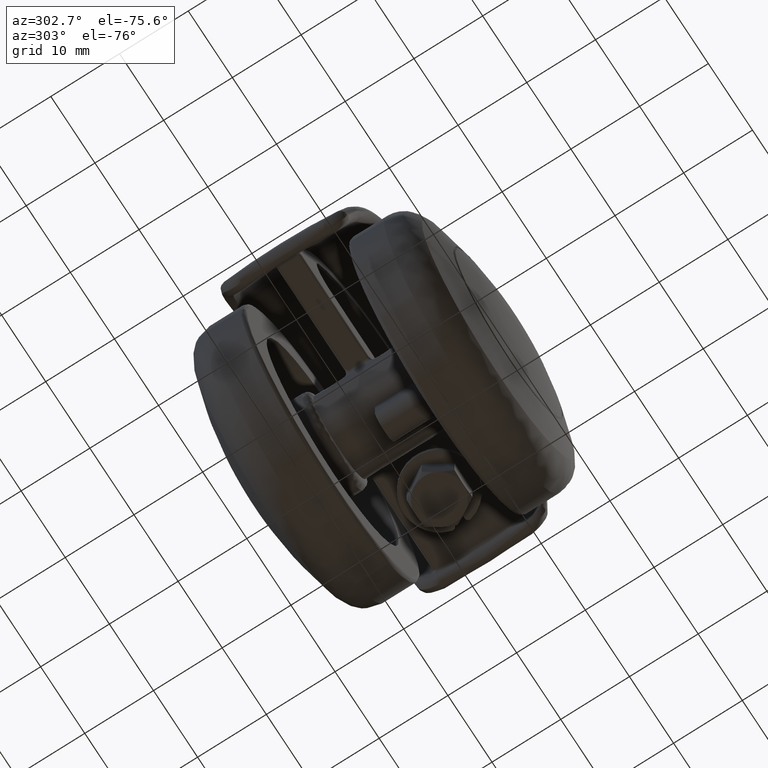
[diagram: clean part render]
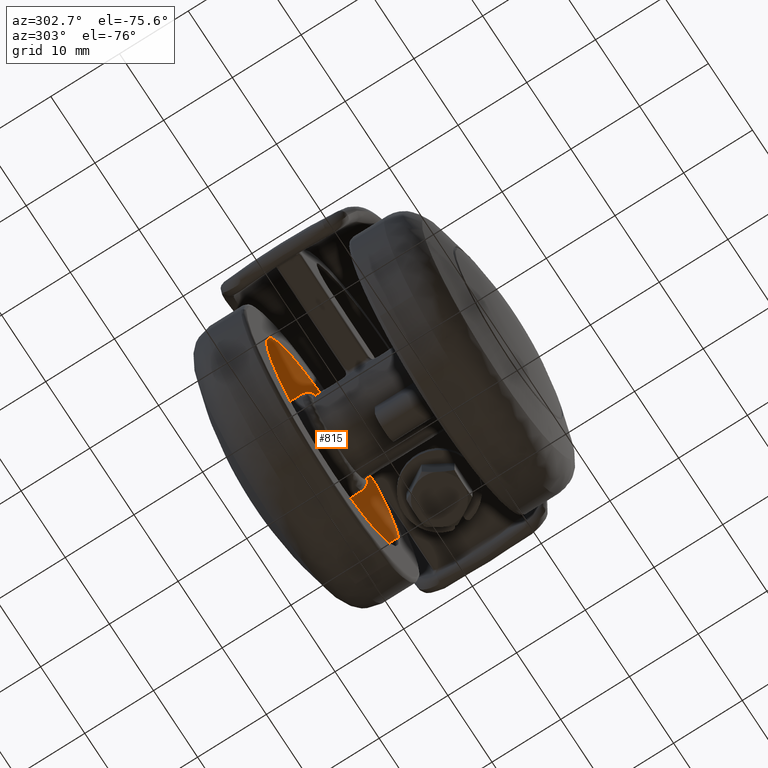
[diagram: same view with one face highlighted and labeled with its STEP entity id]
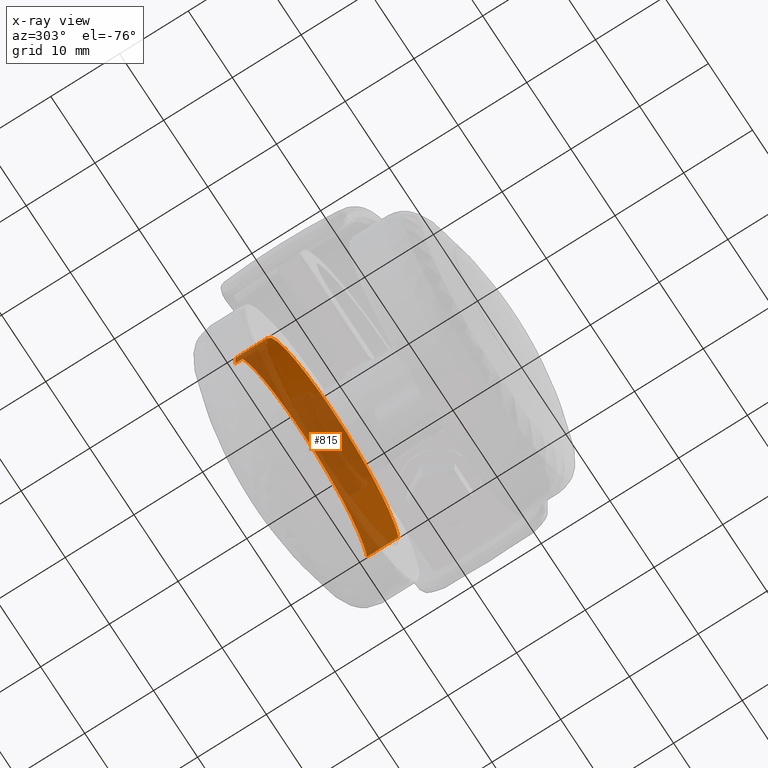
[diagram: x-ray of the same camera — body ghosted, the highlighted face saturated]
A machine part, auxiliary view. The second image highlights one B-rep face of the part: STEP entity #815.
The next image is the same camera in x-ray: the body ghosted, the highlighted face saturated — about 68% of this face is hidden behind the body in this view.
In plain terms, the highlighted face is a freeform B-spline surface patch.
Its self-contained STEP definition (entity closure, byte-faithful):
#652=CARTESIAN_POINT('',(-14.895143268031070,-7.500000000000112,1.770510385402628));
#653=VERTEX_POINT('',#652);
#671=CARTESIAN_POINT('',(-14.895143263547910,-12.087232230838939,1.770510423119121));
#672=VERTEX_POINT('',#671);
#673=CARTESIAN_POINT('',(-14.895143268031070,-7.500000000000112,1.770510385402628));
#674=CARTESIAN_POINT('',(-14.895143263547910,-12.087232230838939,1.770510423119121));
#675=QUASI_UNIFORM_CURVE('',1,(#673,#674),.UNSPECIFIED.,.F.,.U.);
#676=EDGE_CURVE('',#653,#672,#675,.T.);
#695=CARTESIAN_POINT('',(14.972022665491700,-12.087232230838939,-0.915716825156851));
#696=VERTEX_POINT('',#695);
#710=CARTESIAN_POINT('',(14.972022673904799,-7.499999999999893,-0.915716687600522));
#711=VERTEX_POINT('',#710);
#712=CARTESIAN_POINT('',(14.972022673904799,-7.499999999999893,-0.915716687600522));
#713=CARTESIAN_POINT('',(14.972022665491700,-12.087232230838939,-0.915716825156851));
#714=QUASI_UNIFORM_CURVE('',1,(#712,#713),.UNSPECIFIED.,.F.,.U.);
#715=EDGE_CURVE('',#711,#696,#714,.T.);
#733=CARTESIAN_POINT('',(14.972021976328000,-7.385319194229117,-0.915728093022853));
#734=CARTESIAN_POINT('',(15.887750069350853,-7.385319194229119,14.056293883305147));
#735=CARTESIAN_POINT('',(0.915728093022855,-7.385319194229117,14.972021976328000));
#736=CARTESIAN_POINT('',(-13.223152362592515,-7.385319194229119,15.836792950987912));
#737=CARTESIAN_POINT('',(-14.895142895454988,-7.385319194229118,1.770513519851378));
#738=CARTESIAN_POINT('',(14.972021976328000,-12.204780056754190,-0.915728093022853));
#739=CARTESIAN_POINT('',(15.887750069350853,-12.204780056754187,14.056293883305147));
#740=CARTESIAN_POINT('',(0.915728093022855,-12.204780056754190,14.972021976328000));
#741=CARTESIAN_POINT('',(-13.223152362592515,-12.204780056754187,15.836792950987912));
#742=CARTESIAN_POINT('',(-14.895142895454988,-12.204780056754194,1.770513519851378));
#750=(BOUNDED_SURFACE()B_SPLINE_SURFACE(2,1,((#733,#738),(#734,#739),(#735,#740),(#736,#741),(#737,#742)),.UNSPECIFIED.,.F.,.F.,.U.)B_SPLINE_SURFACE_WITH_KNOTS((3,2,3),(2,2),(0.0,24.852813742385699,48.711514935075961),(0.0,4.819460862525070),.UNSPECIFIED.)GEOMETRIC_REPRESENTATION_ITEM()RATIONAL_B_SPLINE_SURFACE(((1.0,1.0),(0.707106781186548,0.707106781186548),(1.0,1.0),(0.718822509939086,0.718822509939086),(0.977505800795127,0.977505800795127)))REPRESENTATION_ITEM('')SURFACE());
#751=CARTESIAN_POINT('',(0.0,-7.500000000000090,15.0));
#752=VERTEX_POINT('',#751);
#753=CARTESIAN_POINT('',(0.0,-7.500000000000090,15.0));
#754=CARTESIAN_POINT('',(-13.322620712542287,-7.500000000000089,15.000000000000009));
#755=CARTESIAN_POINT('',(-14.895143268031076,-7.500000000000112,1.770510385402628));
#763=(BOUNDED_CURVE()B_SPLINE_CURVE(2,(#753,#754,#755),.UNSPECIFIED.,.F.,.U.)B_SPLINE_CURVE_WITH_KNOTS((3,3),(0.0,0.229562509079723),.UNSPECIFIED.)CURVE()GEOMETRIC_REPRESENTATION_ITEM()RATIONAL_B_SPLINE_CURVE((1.0,0.731050791186990,0.956026823894947))REPRESENTATION_ITEM(''));
#764=EDGE_CURVE('',#752,#653,#763,.T.);
#765=ORIENTED_EDGE('',*,*,#764,.F.);
#766=CARTESIAN_POINT('',(14.972022673904796,-7.499999999999893,-0.915716687600522));
#767=CARTESIAN_POINT('',(15.000000000000004,-7.500000000000091,-0.458285730778153));
#768=CARTESIAN_POINT('',(15.0,-7.500000000000090,1.487897E-015));
#769=CARTESIAN_POINT('',(14.999999999999996,-7.500000000000089,15.000000000000012));
#770=CARTESIAN_POINT('',(0.0,-7.500000000000090,15.0));
#778=(BOUNDED_CURVE()B_SPLINE_CURVE(2,(#766,#767,#768,#769,#770),.UNSPECIFIED.,.F.,.U.)B_SPLINE_CURVE_WITH_KNOTS((3,2,3),(0.739333093685083,0.750000000000000,1.0),.UNSPECIFIED.)CURVE()GEOMETRIC_REPRESENTATION_ITEM()RATIONAL_B_SPLINE_CURVE((0.976072323380980,0.987502941898570,1.0,0.707106781186547,1.0))REPRESENTATION_ITEM(''));
#779=EDGE_CURVE('',#711,#752,#778,.T.);
#780=ORIENTED_EDGE('',*,*,#779,.F.);
#781=ORIENTED_EDGE('',*,*,#715,.T.);
#782=CARTESIAN_POINT('',(0.0,-12.087232230838939,15.0));
#783=VERTEX_POINT('',#782);
#784=CARTESIAN_POINT('',(14.972022665491700,-12.087232230838943,-0.915716825156851));
#785=CARTESIAN_POINT('',(15.0,-12.087232230838937,-0.458285799749155));
#786=CARTESIAN_POINT('',(15.0,-12.087232230838939,1.487897E-015));
#787=CARTESIAN_POINT('',(14.999999999999996,-12.087232230838939,15.000000000000012));
#788=CARTESIAN_POINT('',(0.0,-12.087232230838939,15.0));
#796=(BOUNDED_CURVE()B_SPLINE_CURVE(2,(#784,#785,#786,#787,#788),.UNSPECIFIED.,.F.,.U.)B_SPLINE_CURVE_WITH_KNOTS((3,2,3),(0.739333092099799,0.750000000000000,1.0),.UNSPECIFIED.)CURVE()GEOMETRIC_REPRESENTATION_ITEM()RATIONAL_B_SPLINE_CURVE((0.976072319983410,0.987502940041294,1.0,0.707106781186547,1.0))REPRESENTATION_ITEM(''));
#797=EDGE_CURVE('',#696,#783,#796,.T.);
#798=ORIENTED_EDGE('',*,*,#797,.T.);
#799=CARTESIAN_POINT('',(0.0,-12.087232230838939,15.0));
#800=CARTESIAN_POINT('',(-13.322620678570152,-12.087232230838941,15.000000000000005));
#801=CARTESIAN_POINT('',(-14.895143263547912,-12.087232230838936,1.770510423119121));
#809=(BOUNDED_CURVE()B_SPLINE_CURVE(2,(#799,#800,#801),.UNSPECIFIED.,.F.,.U.)B_SPLINE_CURVE_WITH_KNOTS((3,3),(0.0,0.229562508651784),.UNSPECIFIED.)CURVE()GEOMETRIC_REPRESENTATION_ITEM()RATIONAL_B_SPLINE_CURVE((1.0,0.731050791688352,0.956026823056169))REPRESENTATION_ITEM(''));
#810=EDGE_CURVE('',#783,#672,#809,.T.);
#811=ORIENTED_EDGE('',*,*,#810,.T.);
#812=ORIENTED_EDGE('',*,*,#676,.F.);
#813=EDGE_LOOP('',(#765,#780,#781,#798,#811,#812));
#814=FACE_OUTER_BOUND('',#813,.T.);
#815=ADVANCED_FACE('',(#814),#750,.F.);